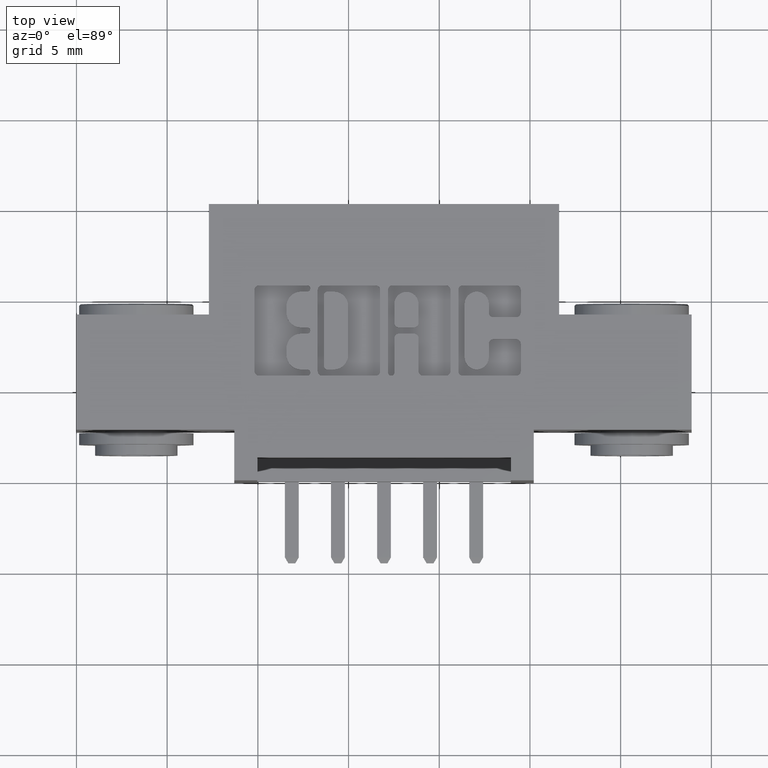
[diagram: clean part render]
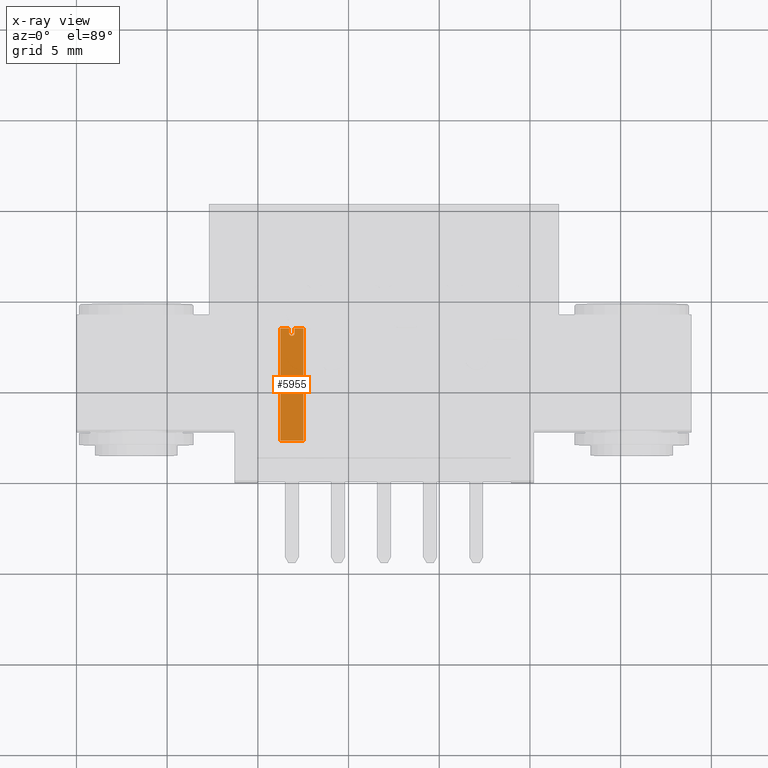
[diagram: x-ray — body ghosted, one internal face saturated and labeled with its STEP entity id]
A machine part, top view, then the same camera in x-ray: the body is ghosted and one INTERNAL B-rep face — a face not visible from any outside direction — is saturated and labeled: STEP entity #5955.
In plain terms, the highlighted planar face has unit normal (-0, -0, -1).
Its self-contained STEP definition (entity closure, byte-faithful):
#89 = CARTESIAN_POINT ( 'NONE',  ( 0.3462132034350881000, 0.01250000000068077900, 9.340188290338115100E-013 ) ) ;
#117 = CIRCLE ( 'NONE', #9663, 0.006000000000000086000 ) ;
#168 = EDGE_CURVE ( 'NONE', #1216, #9282, #117, .T. ) ;
#199 = CIRCLE ( 'NONE', #8376, 0.006000000000000086000 ) ;
#212 = LINE ( 'NONE', #3898, #3993 ) ;
#247 = DIRECTION ( 'NONE',  ( -3.638025613954360900E-013, 7.696810865568531800E-013, 1.000000000000000000 ) ) ;
#317 = EDGE_CURVE ( 'NONE', #2150, #890, #706, .T. ) ;
#374 = DIRECTION ( 'NONE',  ( 9.367616339470002500E-013, -1.000000000000000000, -7.696810865577769900E-013 ) ) ;
#528 = ORIENTED_EDGE ( 'NONE', *, *, #168, .T. ) ;
#556 = DIRECTION ( 'NONE',  ( 3.638025613954360900E-013, -7.696810865568531800E-013, -1.000000000000000000 ) ) ;
#575 = DIRECTION ( 'NONE',  ( 1.000000000000000000, 9.367616339472803500E-013, -3.638025613961074200E-013 ) ) ;
#633 = CARTESIAN_POINT ( 'NONE',  ( 0.3361881571559717200, 0.01250000000055463700, 0.006000000002146567800 ) ) ;
#706 = LINE ( 'NONE', #9140, #5029 ) ;
#890 = VERTEX_POINT ( 'NONE', #7501 ) ;
#1172 = EDGE_CURVE ( 'NONE', #6629, #6685, #7552, .T. ) ;
#1216 = VERTEX_POINT ( 'NONE', #2204 ) ;
#1366 = ORIENTED_EDGE ( 'NONE', *, *, #7194, .T. ) ;
#1524 = CARTESIAN_POINT ( 'NONE',  ( 0.3361881571558011900, 0.01250000000031201500, -0.02499999999946551900 ) ) ;
#1611 = DIRECTION ( 'NONE',  ( -1.000000000000000000, -9.367616339483864200E-013, 3.639306167708116000E-013 ) ) ;
#1832 = DIRECTION ( 'NONE',  ( 9.363391137131493500E-013, 1.000000000000000000, 7.696810865570955200E-013 ) ) ;
#2006 = VECTOR ( 'NONE', #556, 39.37007874015748100 ) ;
#2150 = VERTEX_POINT ( 'NONE', #6659 ) ;
#2164 = EDGE_CURVE ( 'NONE', #6685, #1216, #2645, .T. ) ;
#2204 = CARTESIAN_POINT ( 'NONE',  ( 0.3462132034350045000, 0.01250000000061395200, 0.006000000000951384100 ) ) ;
#2400 = ORIENTED_EDGE ( 'NONE', *, *, #6301, .T. ) ;
#2402 = VECTOR ( 'NONE', #4682, 39.37007874015748100 ) ;
#2645 = LINE ( 'NONE', #633, #7624 ) ;
#2938 = EDGE_CURVE ( 'NONE', #6629, #890, #5974, .T. ) ;
#2948 = CARTESIAN_POINT ( 'NONE',  ( 0.3462132034352294900, 0.01250000000044553300, -0.005999999999065862800 ) ) ;
#2974 = DIRECTION ( 'NONE',  ( 3.638025613954360900E-013, -7.696810865568531800E-013, -1.000000000000000000 ) ) ;
#3022 = VERTEX_POINT ( 'NONE', #4069 ) ;
#3205 = CARTESIAN_POINT ( 'NONE',  ( 0.3462132034350881000, 0.01250000000068077900, 9.340188290338115100E-013 ) ) ;
#3567 = EDGE_LOOP ( 'NONE', ( #9153, #5548, #528, #2400, #5056, #9031, #1366, #9385, #4754 ) ) ;
#3898 = CARTESIAN_POINT ( 'NONE',  ( 0.3361881571561967100, 0.01250000000020496000, -0.005999999998680398600 ) ) ;
#3906 = CARTESIAN_POINT ( 'NONE',  ( 0.3361881571562532200, 0.01250000000078155100, 0.02500000000226020000 ) ) ;
#3993 = VECTOR ( 'NONE', #1611, 39.37007874015748100 ) ;
#4069 = CARTESIAN_POINT ( 'NONE',  ( 0.3361881571558011900, 0.01250000000031201500, -0.02499999999946551900 ) ) ;
#4185 = CARTESIAN_POINT ( 'NONE',  ( 0.3361881571558011900, 0.01250000000031201500, -0.02499999999946551900 ) ) ;
#4205 = CARTESIAN_POINT ( 'NONE',  ( 0.3361881571558011900, 0.01250000000031201500, -0.02499999999946551900 ) ) ;
#4605 = DIRECTION ( 'NONE',  ( 9.363391137131493500E-013, 1.000000000000000000, 7.696810865570955200E-013 ) ) ;
#4682 = DIRECTION ( 'NONE',  ( 1.000000000000000000, 9.367616339472803500E-013, -3.638025613961074200E-013 ) ) ;
#4754 = ORIENTED_EDGE ( 'NONE', *, *, #2938, .F. ) ;
#4862 = CARTESIAN_POINT ( 'NONE',  ( 0.3361881571558011900, 0.01250000000031201500, -0.02499999999946551900 ) ) ;
#5029 = VECTOR ( 'NONE', #247, 39.37007874015748100 ) ;
#5031 = CARTESIAN_POINT ( 'NONE',  ( 0.3361881571562532200, 0.01250000000078155100, 0.02500000000226020000 ) ) ;
#5056 = ORIENTED_EDGE ( 'NONE', *, *, #8750, .T. ) ;
#5134 = AXIS2_PLACEMENT_3D ( 'NONE', #4862, #374, #5598 ) ;
#5518 = DIRECTION ( 'NONE',  ( 1.000000000000000000, 9.369384915770268100E-013, -3.638025613961051000E-013 ) ) ;
#5548 = ORIENTED_EDGE ( 'NONE', *, *, #2164, .T. ) ;
#5598 = DIRECTION ( 'NONE',  ( 1.000000000000000000, 9.367616339472803500E-013, -3.638025613961074200E-013 ) ) ;
#5832 = CARTESIAN_POINT ( 'NONE',  ( 0.3361881571559717200, 0.01250000000055463700, 0.006000000002146567800 ) ) ;
#5955 = ADVANCED_FACE ( 'NONE', ( #8820 ), #9289, .T. ) ;
#5974 = LINE ( 'NONE', #3906, #2402 ) ;
#6021 = CARTESIAN_POINT ( 'NONE',  ( 0.3522132034350882200, 0.01250000000067516200, -1.862774479727963100E-012 ) ) ;
#6137 = LINE ( 'NONE', #4185, #9622 ) ;
#6301 = EDGE_CURVE ( 'NONE', #9282, #9075, #199, .T. ) ;
#6481 = CARTESIAN_POINT ( 'NONE',  ( 0.3361881571561967100, 0.01250000000020496000, -0.005999999998680398600 ) ) ;
#6595 = VERTEX_POINT ( 'NONE', #6481 ) ;
#6629 = VERTEX_POINT ( 'NONE', #5031 ) ;
#6659 = CARTESIAN_POINT ( 'NONE',  ( 0.5802132034340332600, 0.01250000000080060500, -0.02500000000596158300 ) ) ;
#6685 = VERTEX_POINT ( 'NONE', #5832 ) ;
#6807 = DIRECTION ( 'NONE',  ( 1.000000000000000000, 9.369384915770268100E-013, -3.638025613961051000E-013 ) ) ;
#7194 = EDGE_CURVE ( 'NONE', #3022, #2150, #6137, .T. ) ;
#7501 = CARTESIAN_POINT ( 'NONE',  ( 0.5802132034344755800, 0.01250000000098527900, 0.02499999999541063800 ) ) ;
#7552 = LINE ( 'NONE', #4205, #2006 ) ;
#7624 = VECTOR ( 'NONE', #9649, 39.37007874015748100 ) ;
#7682 = VECTOR ( 'NONE', #2974, 39.37007874015748100 ) ;
#8376 = AXIS2_PLACEMENT_3D ( 'NONE', #3205, #1832, #5518 ) ;
#8387 = LINE ( 'NONE', #1524, #7682 ) ;
#8750 = EDGE_CURVE ( 'NONE', #9075, #6595, #212, .T. ) ;
#8820 = FACE_OUTER_BOUND ( 'NONE', #3567, .T. ) ;
#9031 = ORIENTED_EDGE ( 'NONE', *, *, #9279, .T. ) ;
#9075 = VERTEX_POINT ( 'NONE', #2948 ) ;
#9140 = CARTESIAN_POINT ( 'NONE',  ( 0.5802132034344755800, 0.01250000000098527900, 0.02499999999541063800 ) ) ;
#9153 = ORIENTED_EDGE ( 'NONE', *, *, #1172, .T. ) ;
#9279 = EDGE_CURVE ( 'NONE', #6595, #3022, #8387, .T. ) ;
#9282 = VERTEX_POINT ( 'NONE', #6021 ) ;
#9289 = PLANE ( 'NONE',  #5134 ) ;
#9385 = ORIENTED_EDGE ( 'NONE', *, *, #317, .T. ) ;
#9622 = VECTOR ( 'NONE', #575, 39.37007874015748100 ) ;
#9649 = DIRECTION ( 'NONE',  ( 1.000000000000000000, 9.367616339472803500E-013, -3.638025613961074200E-013 ) ) ;
#9663 = AXIS2_PLACEMENT_3D ( 'NONE', #89, #4605, #6807 ) ;